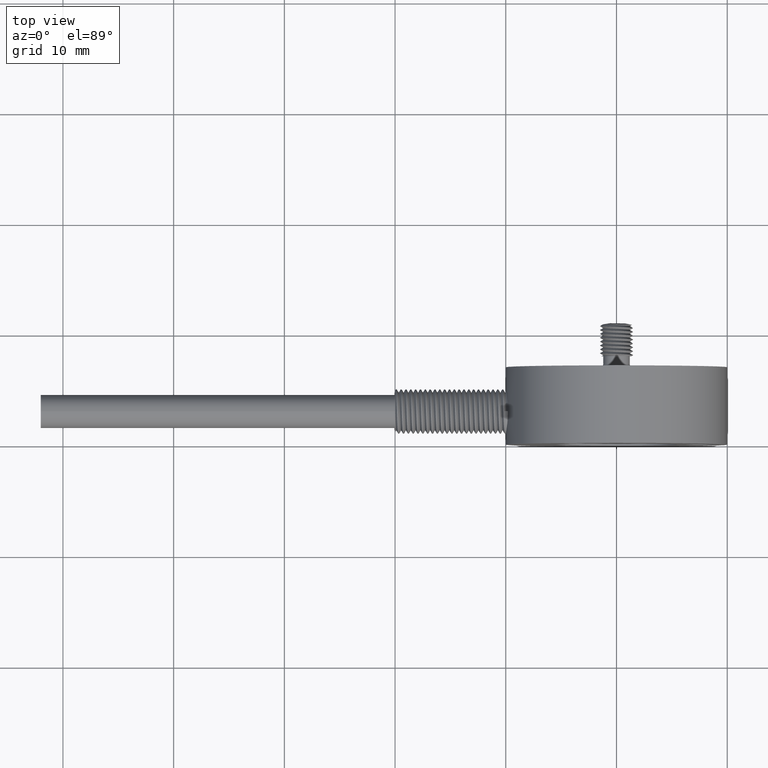
[diagram: clean part render]
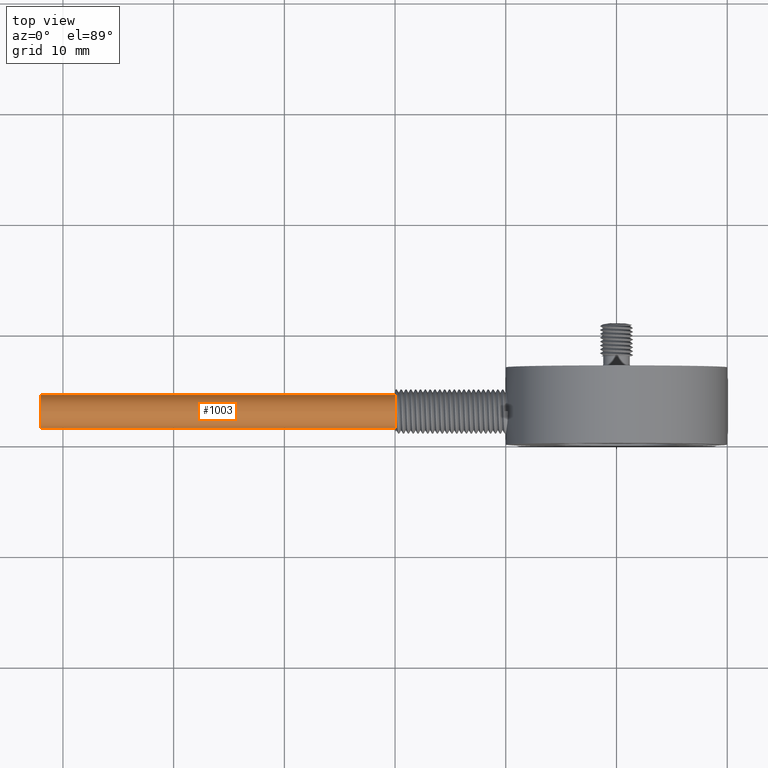
[diagram: same view with one face highlighted and labeled with its STEP entity id]
A machine part, top view. The second image highlights one B-rep face of the part: STEP entity #1003.
In plain terms, the highlighted cylindrical surface (bore or boss wall) has radius 1.5 mm, axis along (1, 0, 0).
Its self-contained STEP definition (entity closure, byte-faithful):
#72=FACE_OUTER_BOUND('',#129,.T.);
#129=EDGE_LOOP('',(#745,#746,#747,#748,#749,#750));
#165=CIRCLE('',#1078,1.5);
#166=CIRCLE('',#1079,1.5);
#167=CIRCLE('',#1080,1.5);
#168=CIRCLE('',#1081,1.5);
#300=LINE('',#3644,#345);
#345=VECTOR('',#1235,1.5);
#427=VERTEX_POINT('',#3640);
#428=VERTEX_POINT('',#3641);
#429=VERTEX_POINT('',#3643);
#430=VERTEX_POINT('',#3645);
#562=EDGE_CURVE('',#427,#428,#165,.T.);
#563=EDGE_CURVE('',#428,#429,#300,.T.);
#564=EDGE_CURVE('',#430,#429,#166,.T.);
#565=EDGE_CURVE('',#429,#430,#167,.T.);
#566=EDGE_CURVE('',#428,#427,#168,.T.);
#745=ORIENTED_EDGE('',*,*,#562,.T.);
#746=ORIENTED_EDGE('',*,*,#563,.T.);
#747=ORIENTED_EDGE('',*,*,#564,.F.);
#748=ORIENTED_EDGE('',*,*,#565,.F.);
#749=ORIENTED_EDGE('',*,*,#563,.F.);
#750=ORIENTED_EDGE('',*,*,#566,.T.);
#962=CYLINDRICAL_SURFACE('',#1077,1.5);
#1003=ADVANCED_FACE('',(#72),#962,.T.);
#1077=AXIS2_PLACEMENT_3D('',#3639,#1231,#1232);
#1078=AXIS2_PLACEMENT_3D('',#3642,#1233,#1234);
#1079=AXIS2_PLACEMENT_3D('',#3646,#1236,#1237);
#1080=AXIS2_PLACEMENT_3D('',#3647,#1238,#1239);
#1081=AXIS2_PLACEMENT_3D('',#3648,#1240,#1241);
#1231=DIRECTION('center_axis',(1.,0.,0.));
#1232=DIRECTION('ref_axis',(0.,0.,-1.));
#1233=DIRECTION('center_axis',(-1.,0.,0.));
#1234=DIRECTION('ref_axis',(0.,0.,-1.));
#1235=DIRECTION('',(-1.,0.,0.));
#1236=DIRECTION('center_axis',(-1.,0.,0.));
#1237=DIRECTION('ref_axis',(0.,0.,1.));
#1238=DIRECTION('center_axis',(-1.,0.,0.));
#1239=DIRECTION('ref_axis',(0.,0.,1.));
#1240=DIRECTION('center_axis',(-1.,0.,0.));
#1241=DIRECTION('ref_axis',(0.,0.,-1.));
#3639=CARTESIAN_POINT('Origin',(-52.,3.,0.));
#3640=CARTESIAN_POINT('',(-20.,3.,-1.5));
#3641=CARTESIAN_POINT('',(-20.,3.,1.5));
#3642=CARTESIAN_POINT('Origin',(-20.,3.,0.));
#3643=CARTESIAN_POINT('',(-52.,3.,1.5));
#3644=CARTESIAN_POINT('',(-52.,3.,1.5));
#3645=CARTESIAN_POINT('',(-52.,3.,-1.5));
#3646=CARTESIAN_POINT('Origin',(-52.,3.,0.));
#3647=CARTESIAN_POINT('Origin',(-52.,3.,0.));
#3648=CARTESIAN_POINT('Origin',(-20.,3.,0.));